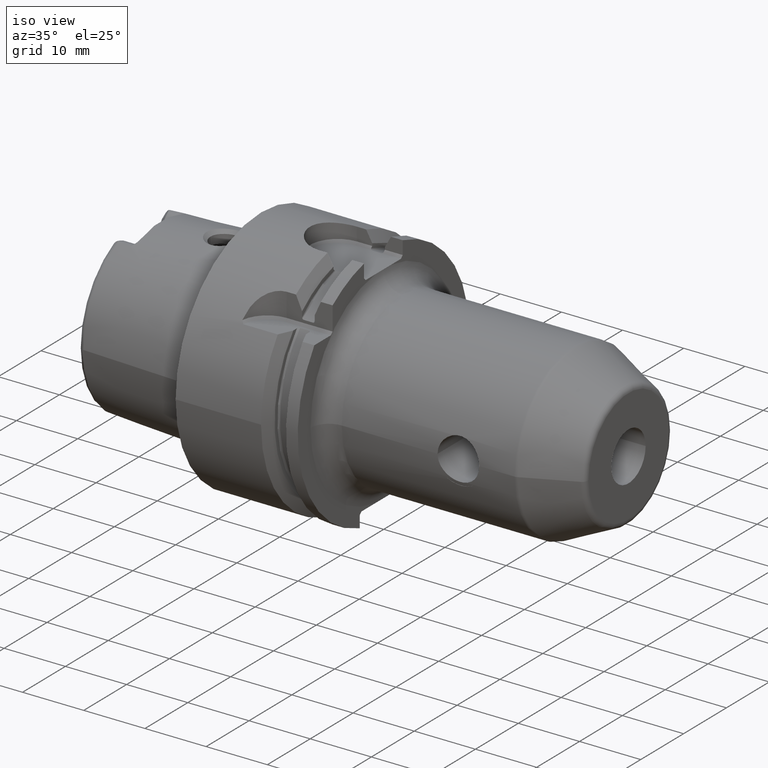
[diagram: clean part render]
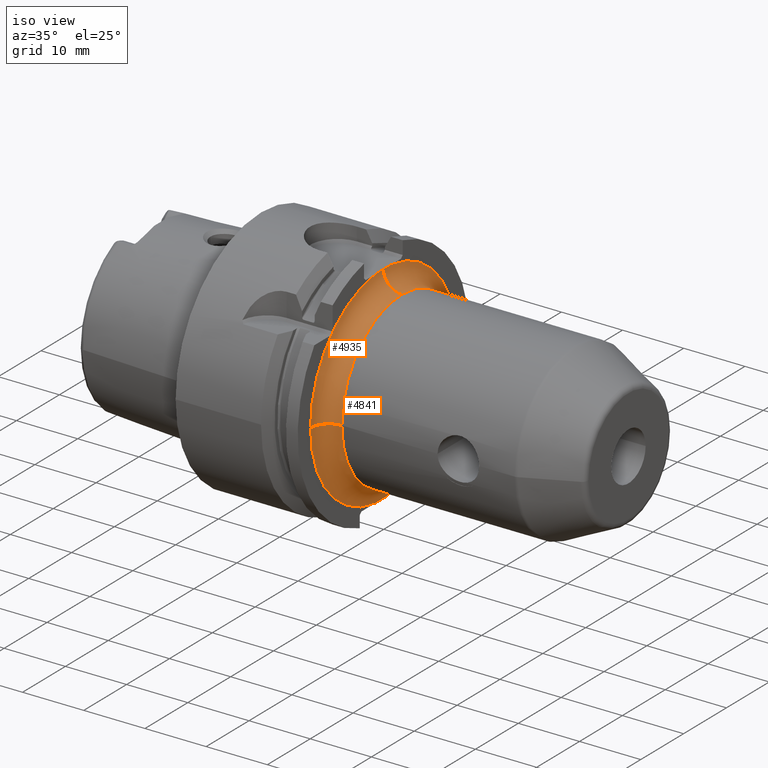
[diagram: same view with one multi-face feature highlighted, each face labeled with its STEP entity id]
A machine part, iso view. The highlighted faces form ONE feature: a constant-radius fillet chain: 2 tangent blend faces with common blend radius 3 mm. The faces share edges in the B-rep.
Their STEP definitions:
[1] entity #4841 (Torus):
#1360=CARTESIAN_POINT('',(1.995E1,1.841181208148E0,-1.690000292846E1));
#1361=CARTESIAN_POINT('',(1.995E1,1.432318412138E0,-1.690000292846E1));
#1362=CARTESIAN_POINT('',(1.995175455831E1,6.144146683705E-1,
-1.689999979420E1));
#1363=CARTESIAN_POINT('',(1.995175455900E1,-6.144340020511E-1,
-1.689999632760E1));
#1364=CARTESIAN_POINT('',(1.995E1,-1.432259328560E0,-1.690000870613E1));
#1365=CARTESIAN_POINT('',(1.995E1,-1.841122259888E0,-1.690000870613E1));
#1367=CARTESIAN_POINT('',(2.295E1,-1.7E1,1.468131172189E-13));
#1368=DIRECTION('',(0.E0,0.E0,-1.E0));
#1369=DIRECTION('',(-1.E0,0.E0,0.E0));
#1370=AXIS2_PLACEMENT_3D('',#1367,#1368,#1369);
#1372=CARTESIAN_POINT('',(2.295E1,0.E0,0.E0));
#1373=DIRECTION('',(1.E0,0.E0,0.E0));
#1374=DIRECTION('',(0.E0,-1.E0,0.E0));
#1375=AXIS2_PLACEMENT_3D('',#1372,#1373,#1374);
#1377=CARTESIAN_POINT('',(1.995E1,0.E0,0.E0));
#1378=DIRECTION('',(-1.E0,0.E0,0.E0));
#1379=DIRECTION('',(0.E0,1.083068556399E-1,9.941175106703E-1));
#1380=AXIS2_PLACEMENT_3D('',#1377,#1378,#1379);
#1398=CARTESIAN_POINT('',(1.995E1,0.E0,0.E0));
#1399=DIRECTION('',(1.E0,0.E0,0.E0));
#1400=DIRECTION('',(0.E0,-1.E0,0.E0));
#1401=AXIS2_PLACEMENT_3D('',#1398,#1399,#1400);
#1492=CARTESIAN_POINT('',(1.995E1,1.841121605462E0,1.690000880628E1));
#1493=CARTESIAN_POINT('',(1.995E1,1.636864330633E0,1.690000880628E1));
#1494=CARTESIAN_POINT('',(1.995047679372E1,1.228261816878E0,1.689999589040E1));
#1495=CARTESIAN_POINT('',(1.995140452061E1,6.145198602053E-1,1.690000117417E1));
#1496=CARTESIAN_POINT('',(1.995166703294E1,2.050635730530E-1,1.69E1));
#1497=CARTESIAN_POINT('',(1.995166712983E1,2.396912238614E-4,1.69E1));
#1499=CARTESIAN_POINT('',(2.295E1,2.411095150987E-4,1.699999999829E1));
#1500=DIRECTION('',(0.E0,-9.999999998994E-1,1.418291265287E-5));
#1501=DIRECTION('',(-9.994442900566E-1,-4.727637470597E-7,-3.333333276340E-2));
#1502=AXIS2_PLACEMENT_3D('',#1499,#1500,#1501);
#1532=CARTESIAN_POINT('',(2.295E1,0.E0,0.E0));
#1533=DIRECTION('',(1.E0,0.E0,0.E0));
#1534=DIRECTION('',(0.E0,1.E0,0.E0));
#1535=AXIS2_PLACEMENT_3D('',#1532,#1533,#1534);
#3335=CARTESIAN_POINT('',(1.995166712983E1,2.396912238576E-4,1.69E1));
#3336=CARTESIAN_POINT('',(2.295E1,1.985607771401E-4,1.399999999859E1));
#3337=VERTEX_POINT('',#3335);
#3338=VERTEX_POINT('',#3336);
#3349=CARTESIAN_POINT('',(2.295E1,1.4E1,0.E0));
#3350=VERTEX_POINT('',#3349);
#3367=CARTESIAN_POINT('',(2.295E1,-1.4E1,-2.398972962739E-12));
#3368=VERTEX_POINT('',#3367);
#3369=CARTESIAN_POINT('',(1.995E1,-1.7E1,0.E0));
#3370=CARTESIAN_POINT('',(1.995E1,-1.841215760408E0,-1.689999776697E1));
#3371=VERTEX_POINT('',#3369);
#3372=VERTEX_POINT('',#3370);
#3375=VERTEX_POINT('',#1492);
#3376=CARTESIAN_POINT('',(1.995E1,1.841181208148E0,-1.690000292846E1));
#3377=VERTEX_POINT('',#3376);
#4819=CARTESIAN_POINT('',(2.295E1,0.E0,0.E0));
#4820=DIRECTION('',(1.E0,0.E0,0.E0));
#4821=DIRECTION('',(0.E0,9.999849205750E-1,-5.491686681722E-3));
#4822=AXIS2_PLACEMENT_3D('',#4819,#4820,#4821);
#4823=TOROIDAL_SURFACE('',#4822,1.7E1,3.E0);
#4824=ORIENTED_EDGE('',*,*,#4782,.T.);
#4826=ORIENTED_EDGE('',*,*,#4825,.F.);
#4828=ORIENTED_EDGE('',*,*,#4827,.T.);
#4830=ORIENTED_EDGE('',*,*,#4829,.T.);
#4832=ORIENTED_EDGE('',*,*,#4831,.T.);
#4834=ORIENTED_EDGE('',*,*,#4833,.F.);
#4836=ORIENTED_EDGE('',*,*,#4835,.F.);
#4838=ORIENTED_EDGE('',*,*,#4837,.T.);
#4839=EDGE_LOOP('',(#4824,#4826,#4828,#4830,#4832,#4834,#4836,#4838));
#4840=FACE_OUTER_BOUND('',#4839,.F.);
#4841=ADVANCED_FACE('',(#4840),#4823,.F.);
#1366=B_SPLINE_CURVE_WITH_KNOTS('',3,(#1360,#1361,#1362,#1363,#1364,#1365),
.UNSPECIFIED.,.F.,.F.,(4,1,1,4),(0.E0,3.333333333333E-1,6.666666666667E-1,1.E0),
.UNSPECIFIED.);
#1371=CIRCLE('',#1370,3.E0);
#1376=CIRCLE('',#1375,1.4E1);
#1381=CIRCLE('',#1380,1.7E1);
#1402=CIRCLE('',#1401,1.7E1);
#1498=B_SPLINE_CURVE_WITH_KNOTS('',3,(#1492,#1493,#1494,#1495,#1496,#1497),
.UNSPECIFIED.,.F.,.F.,(4,1,1,4),(0.E0,3.333333333333E-1,6.666666666667E-1,1.E0),
.UNSPECIFIED.);
#1503=CIRCLE('',#1502,3.E0);
#1536=CIRCLE('',#1535,1.4E1);
#4782=EDGE_CURVE('',#3377,#3372,#1366,.T.);
#4825=EDGE_CURVE('',#3371,#3372,#1402,.T.);
#4827=EDGE_CURVE('',#3371,#3368,#1371,.T.);
#4829=EDGE_CURVE('',#3368,#3350,#1376,.T.);
#4831=EDGE_CURVE('',#3350,#3338,#1536,.T.);
#4833=EDGE_CURVE('',#3337,#3338,#1503,.T.);
#4835=EDGE_CURVE('',#3375,#3337,#1498,.T.);
#4837=EDGE_CURVE('',#3375,#3377,#1381,.T.);
[2] entity #4935 (Torus):
#1367=CARTESIAN_POINT('',(2.295E1,-1.7E1,1.468131172189E-13));
#1368=DIRECTION('',(0.E0,0.E0,-1.E0));
#1369=DIRECTION('',(-1.E0,0.E0,0.E0));
#1370=AXIS2_PLACEMENT_3D('',#1367,#1368,#1369);
#1427=CARTESIAN_POINT('',(1.995E1,0.E0,0.E0));
#1428=DIRECTION('',(1.E0,0.E0,0.E0));
#1429=DIRECTION('',(0.E0,-1.083077943263E-1,9.941174084021E-1));
#1430=AXIS2_PLACEMENT_3D('',#1427,#1428,#1429);
#1432=CARTESIAN_POINT('',(1.995166712983E1,2.396912238614E-4,1.69E1));
#1433=CARTESIAN_POINT('',(1.995166722675E1,-2.046607415398E-1,1.69E1));
#1434=CARTESIAN_POINT('',(1.995140491991E1,-6.142642222903E-1,
1.690000039458E1));
#1435=CARTESIAN_POINT('',(1.995047669965E1,-1.228279460088E0,1.689999861897E1));
#1436=CARTESIAN_POINT('',(1.995E1,-1.636958723099E0,1.690000295935E1));
#1437=CARTESIAN_POINT('',(1.995E1,-1.841180660556E0,1.690000295935E1));
#1499=CARTESIAN_POINT('',(2.295E1,2.411095150987E-4,1.699999999829E1));
#1500=DIRECTION('',(0.E0,-9.999999998994E-1,1.418291265287E-5));
#1501=DIRECTION('',(-9.994442900566E-1,-4.727637470597E-7,-3.333333276340E-2));
#1502=AXIS2_PLACEMENT_3D('',#1499,#1500,#1501);
#1527=CARTESIAN_POINT('',(2.295E1,0.E0,0.E0));
#1528=DIRECTION('',(1.E0,0.E0,0.E0));
#1529=DIRECTION('',(0.E0,1.406391052786E-5,9.999999999011E-1));
#1530=AXIS2_PLACEMENT_3D('',#1527,#1528,#1529);
#3335=CARTESIAN_POINT('',(1.995166712983E1,2.396912238576E-4,1.69E1));
#3336=CARTESIAN_POINT('',(2.295E1,1.985607771401E-4,1.399999999859E1));
#3337=VERTEX_POINT('',#3335);
#3338=VERTEX_POINT('',#3336);
#3367=CARTESIAN_POINT('',(2.295E1,-1.4E1,-2.398972962739E-12));
#3368=VERTEX_POINT('',#3367);
#3369=CARTESIAN_POINT('',(1.995E1,-1.7E1,0.E0));
#3371=VERTEX_POINT('',#3369);
#3373=CARTESIAN_POINT('',(1.995E1,-1.841232503546E0,1.689999594284E1));
#3374=VERTEX_POINT('',#3373);
#4922=CARTESIAN_POINT('',(2.295E1,0.E0,0.E0));
#4923=DIRECTION('',(1.E0,0.E0,0.E0));
#4924=DIRECTION('',(0.E0,1.485959642860E-3,-9.999988959614E-1));
#4925=AXIS2_PLACEMENT_3D('',#4922,#4923,#4924);
#4926=TOROIDAL_SURFACE('',#4925,1.7E1,3.E0);
#4927=ORIENTED_EDGE('',*,*,#4833,.T.);
#4929=ORIENTED_EDGE('',*,*,#4928,.T.);
#4930=ORIENTED_EDGE('',*,*,#4827,.F.);
#4931=ORIENTED_EDGE('',*,*,#4886,.F.);
#4932=ORIENTED_EDGE('',*,*,#4896,.F.);
#4933=EDGE_LOOP('',(#4927,#4929,#4930,#4931,#4932));
#4934=FACE_OUTER_BOUND('',#4933,.F.);
#4935=ADVANCED_FACE('',(#4934),#4926,.F.);
#1371=CIRCLE('',#1370,3.E0);
#1431=CIRCLE('',#1430,1.7E1);
#1438=B_SPLINE_CURVE_WITH_KNOTS('',3,(#1432,#1433,#1434,#1435,#1436,#1437),
.UNSPECIFIED.,.F.,.F.,(4,1,1,4),(0.E0,3.333333333333E-1,6.666666666667E-1,1.E0),
.UNSPECIFIED.);
#1503=CIRCLE('',#1502,3.E0);
#1531=CIRCLE('',#1530,1.4E1);
#4827=EDGE_CURVE('',#3371,#3368,#1371,.T.);
#4833=EDGE_CURVE('',#3337,#3338,#1503,.T.);
#4886=EDGE_CURVE('',#3374,#3371,#1431,.T.);
#4896=EDGE_CURVE('',#3337,#3374,#1438,.T.);
#4928=EDGE_CURVE('',#3338,#3368,#1531,.T.);